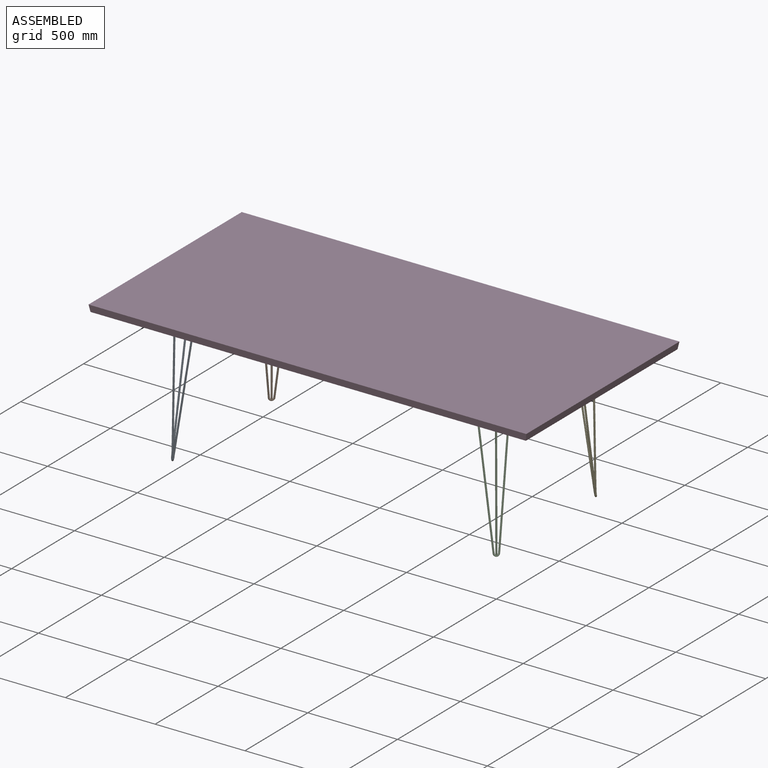
[diagram: assembled view]
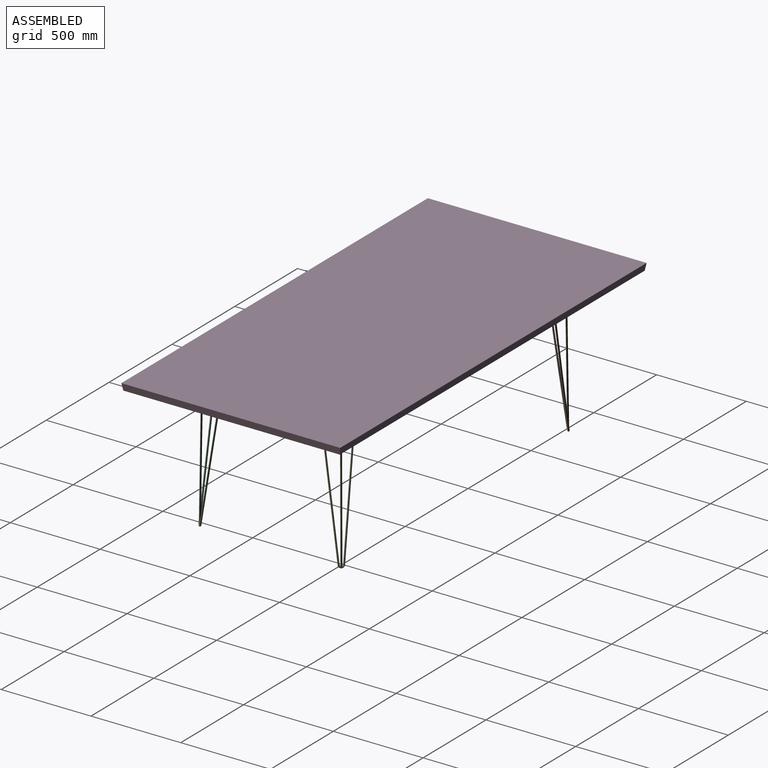
[diagram: assembled view, second angle]
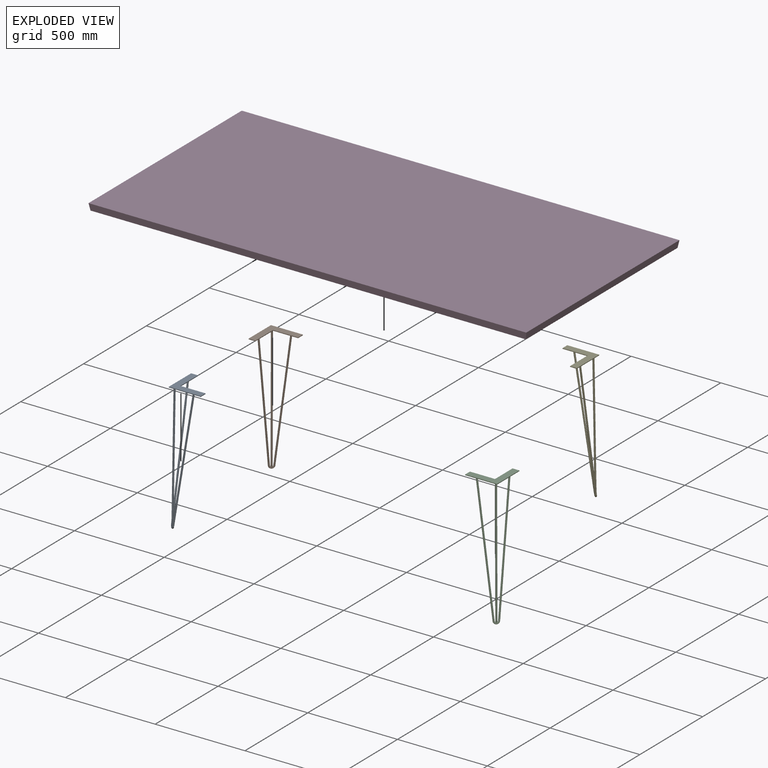
[diagram: exploded view]
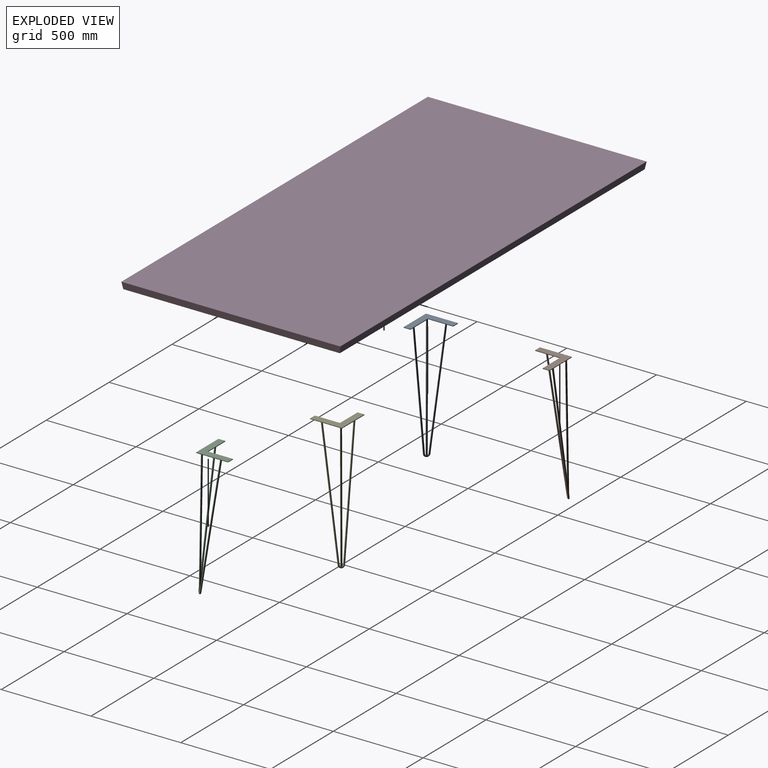
[diagram: exploded view, second angle]
ASSEMBLY  parts=5 mates=4
PART A: 16 faces, bbox 254.7x155.9x717.2 mm
  f0: bspline ~34.74x16.73mm, area 1030mm2, adj f3,f4,f14,f15
  f1: plane 10.88x6.08mm, normal (0,0.12,0.99), area 35.6mm2, adj f3,f5
  f2: plane 10.47x9.1mm, normal (-0.18,0.12,0.98), area 35.6mm2, adj f4,f5
  f3: bspline ~696.76x104.17mm, area 21019.7mm2, adj f0,f1,f5
  f4: bspline ~696.48x94.64mm, area 21019.7mm2, adj f0,f2,f5
  f5: plane 254.66x155.87mm, normal (0,0,-1), area 11989.4mm2, adj f1,f2,f3,f4,f6,f7,f8,f9
  f6: plane 26.94x26.94mm, normal (0.71,0.71,0), area 145.2mm2, adj f5,f7,f11,f12
  f7: plane 98.78x98.78mm, normal (-0.71,0.71,0), area 532.3mm2, adj f5,f6,f8,f12
  f8: plane 98.78x98.78mm, normal (0.71,0.71,0), area 532.3mm2, adj f5,f7,f9,f12
  f9: plane 26.94x26.94mm, normal (-0.71,0.71,0), area 145.2mm2, adj f5,f8,f10,f12
  f10: plane 125.72x125.72mm, normal (-0.71,-0.71,0), area 677.4mm2, adj f5,f9,f11,f12
  f11: plane 125.72x125.72mm, normal (0.71,-0.71,0), area 677.4mm2, adj f5,f6,f10,f12
  f12: plane 251.45x152.66mm, normal (0,0,1), area 12096.8mm2, adj f6,f7,f8,f9,f10,f11
  f13: plane 9.53x4.76mm, normal (0,0.01,1), area 35.6mm2, adj f5,f14
  f14: cylinder r=4.76mm len=706.18mm, axis (0,-0.01,-1), area 21015.7mm2, adj f0,f5,f13,f15
  f15: plane 5.09x1.05mm, normal (0,-0.01,-1), area 1.9mm2, adj f0,f14
PART B: same geometry as A
PART C: same geometry as A
PART D: 20 faces, bbox 2438.4x1219.2x69.9 mm
  f0: plane 2438.4x1219.2mm, normal (0,0,1), area 2972897.3mm2, adj f2,f3,f4,f5
  f1: plane 2425.7x1206.5mm, normal (0,0,-1), area 1440158.4mm2, adj f2,f3,f4,f5,f10,f11,f12,f13
  f2: plane 1219.2x38.1mm, normal (-0.99,0,-0.16), area 46847mm2, adj f0,f1,f3,f4
  f3: plane 2438.4x38.1mm, normal (0,-0.99,-0.16), area 93939.2mm2, adj f0,f1,f2,f5
  f4: plane 2438.4x38.1mm, normal (0,0.99,-0.16), area 93939.2mm2, adj f0,f1,f2,f5
  f5: plane 1219.2x38.1mm, normal (0.99,0,-0.16), area 46847mm2, adj f0,f1,f3,f4
  f6: plane 1727.2x50.8mm, normal (0,1,0), area 83870.8mm2, adj f8,f9,f14,f15,f16,f17,f18,f19
  f7: plane 1727.2x50.8mm, normal (0,-1,0), area 83870.8mm2, adj f8,f9,f14,f15,f16,f17,f18,f19
  f8: plane 711.2x50.8mm, normal (1,0,0), area 36129mm2, adj f6,f7,f14,f18
  f9: plane 711.2x50.8mm, normal (-1,0,0), area 36129mm2, adj f6,f7,f14,f16
  f10: plane 812.8x31.75mm, normal (-1,0,0), area 25806.4mm2, adj f1,f11,f13,f14
  f11: plane 1828.8x31.75mm, normal (0,1,0), area 58064.4mm2, adj f1,f10,f12,f14
  f12: plane 812.8x31.75mm, normal (1,0,0), area 25806.4mm2, adj f1,f11,f13,f14
  f13: plane 1828.8x31.75mm, normal (0,-1,0), area 58064.4mm2, adj f1,f10,f12,f14
  f14: plane 1828.8x812.8mm, normal (0,0,-1), area 258064mm2, adj f6,f7,f8,f9,f10,f11,f12,f13
  f15: plane 711.2x203.2mm, normal (0,0,-1), area 144515.8mm2, adj f6,f7,f17,f19
  f16: plane 762x711.2mm, normal (0,0,-1), area 541934.4mm2, adj f6,f7,f9,f17
  f17: plane 711.2x19.05mm, normal (1,0,0), area 13548.4mm2, adj f6,f7,f15,f16
  f18: plane 762x711.2mm, normal (0,0,-1), area 541934.4mm2, adj f6,f7,f8,f19
  f19: plane 711.2x19.05mm, normal (-1,0,0), area 13548.4mm2, adj f6,f7,f15,f18
PART E: same geometry as A
PLACE A rot(axis=(0,0,-1),45deg) t=(-1034.79,-236.75,273.77)mm
PLACE B rot(axis=(0,0,-1),135deg) t=(-1034.79,430.19,273.77)mm
PLACE C rot(axis=(0,0,1),45deg) t=(648.15,-236.75,273.77)mm
PLACE D t=(-193.32,96.72,328.38)mm fixed
PLACE E rot(axis=(0,0,1),135deg) t=(648.15,430.19,273.77)mm
MATE fastened D.f14 <-> C.f12  axis (0,0,1) through (721.08,-309.68,277.58)mm
MATE fastened D.f14 <-> A.f12  axis (0,0,1) through (-1107.72,-309.68,277.58)mm
MATE fastened D.f14 <-> B.f12  axis (0,0,-1) through (-1107.72,503.12,277.58)mm
MATE fastened D.f14 <-> E.f12  axis (0,0,-1) through (721.08,503.12,277.58)mm
